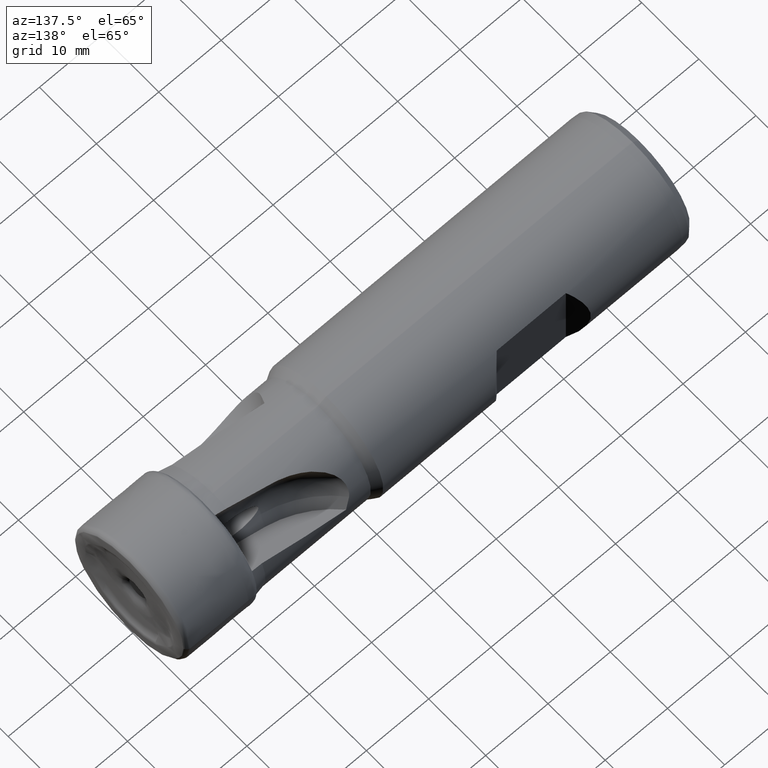
[diagram: clean part render]
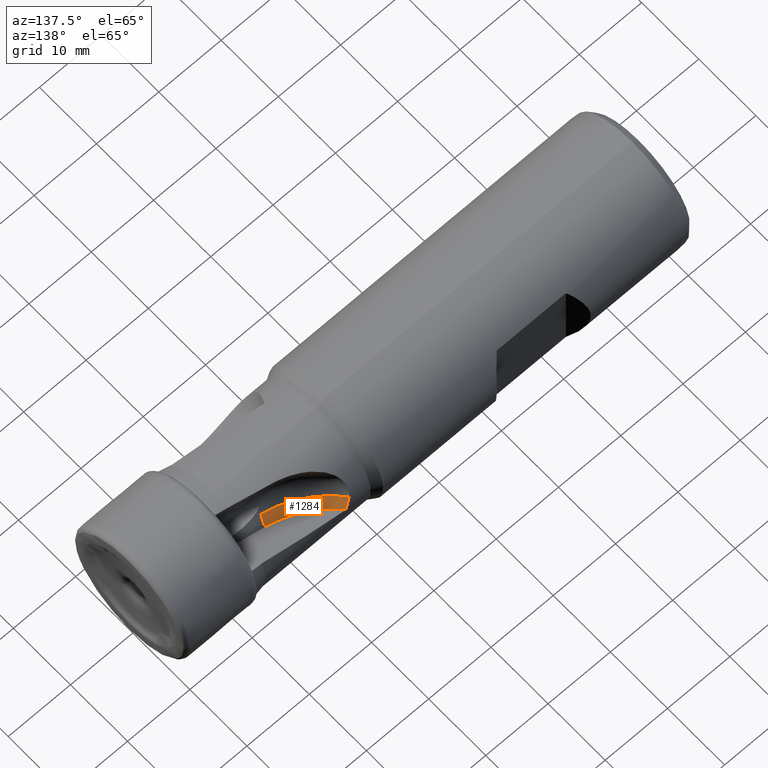
[diagram: same view with one face highlighted and labeled with its STEP entity id]
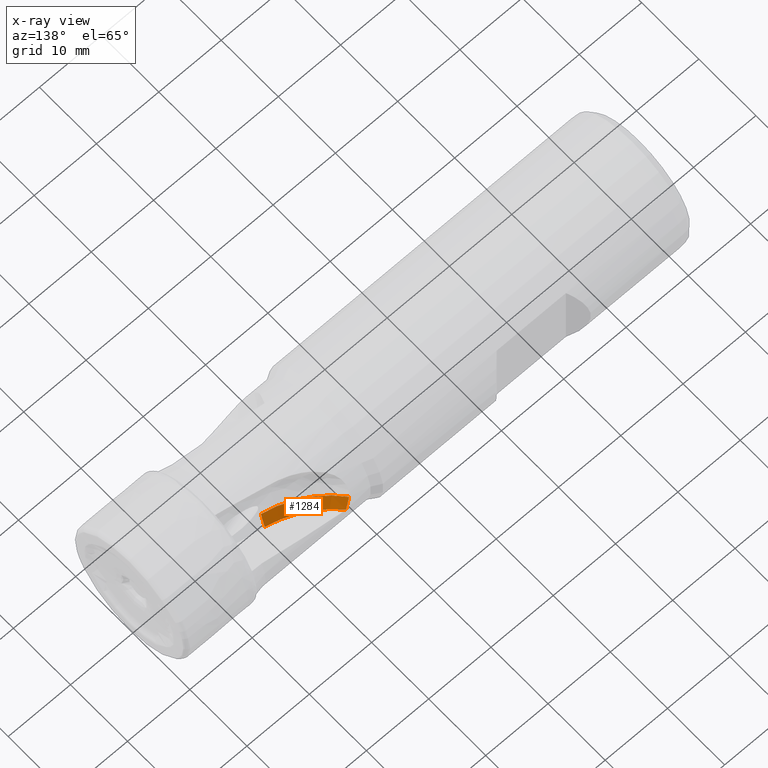
[diagram: x-ray of the same camera — body ghosted, the highlighted face saturated]
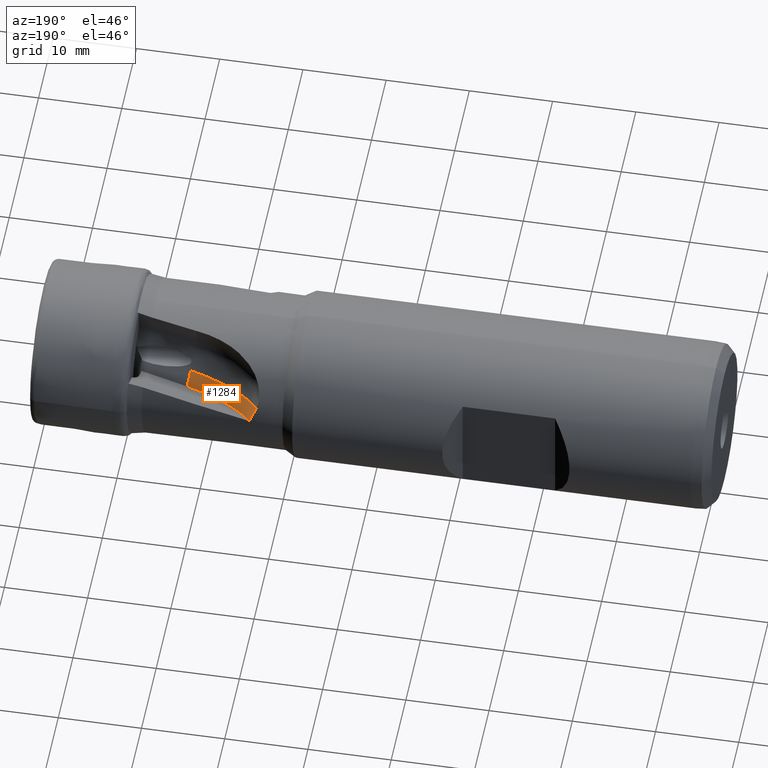
[diagram: same view with one face highlighted and labeled with its STEP entity id]
A machine part, auxiliary view. The second image highlights one B-rep face of the part: STEP entity #1284.
The next image is the same camera in x-ray: the body ghosted, the highlighted face saturated — about 0% of this face is hidden behind the body in this view.
A second angle (auxiliary view) of the same face is appended — the face is thin or edge-on in the first view.
In plain terms, the highlighted face is a freeform B-spline surface patch.
Its self-contained STEP definition (entity closure, byte-faithful):
#6 = CIRCLE ( 'NONE', #1662, 10.00001983290760100 ) ;
#166 = CARTESIAN_POINT ( 'NONE',  ( -26.57872664118340800, 8.973588948222179300, 2.480553098955772500 ) ) ;
#174 = CARTESIAN_POINT ( 'NONE',  ( -24.86125605647818700, 5.672919713768785700, 1.068354693434464100 ) ) ;
#183 = CARTESIAN_POINT ( 'NONE',  ( -21.54096527471467900, 3.513741537683877000, 0.6784243540060720400 ) ) ;
#208 = CARTESIAN_POINT ( 'NONE',  ( -17.40490549536792700, 4.128766780620034100, -0.3043842352024829800 ) ) ;
#220 = CARTESIAN_POINT ( 'NONE',  ( -26.23733899203747200, 10.06375628979936500, 0.8389107382787715000 ) ) ;
#225 = CARTESIAN_POINT ( 'NONE',  ( -21.29722658790441200, 4.536799965570571300, -1.024148459313530200 ) ) ;
#231 = CARTESIAN_POINT ( 'NONE',  ( -17.64864418217819900, 3.166374934911660800, 1.431816613739265800 ) ) ;
#243 = CARTESIAN_POINT ( 'NONE',  ( -24.58121054372533700, 6.743486303312002900, -0.5990603620072878500 ) ) ;
#256 = VERTEX_POINT ( 'NONE', #2162 ) ;
#273 = VERTEX_POINT ( 'NONE', #2146 ) ;
#277 = EDGE_CURVE ( 'NONE', #273, #256, #6, .T. ) ;
#310 = VERTEX_POINT ( 'NONE', #2191 ) ;
#406 = VERTEX_POINT ( 'NONE', #1946 ) ;
#1186 = FACE_OUTER_BOUND ( 'NONE', #4034, .T. ) ;
#1284 = ADVANCED_FACE ( 'NONE', ( #1186 ), #3343, .T. ) ;
#1606 = CARTESIAN_POINT ( 'NONE',  ( -26.54945737962980700, 8.917788416002267100, 2.456735591681937800 ) ) ;
#1609 = CARTESIAN_POINT ( 'NONE',  ( -26.32688608731626400, 9.097817253906917800, 1.803242765403043200 ) ) ;
#1611 = CARTESIAN_POINT ( 'NONE',  ( -26.07041568643023800, 9.202240444450760400, 1.140874201251209000 ) ) ;
#1612 = CARTESIAN_POINT ( 'NONE',  ( -25.77262820655407800, 9.236827555946195600, 0.4934741145317769200 ) ) ;
#1662 = AXIS2_PLACEMENT_3D ( 'NONE', #2141, #2140, #2139 ) ;
#1780 = AXIS2_PLACEMENT_3D ( 'NONE', #3542, #3543, #3544 ) ;
#1946 = CARTESIAN_POINT ( 'NONE',  ( -26.54945737962980700, 8.917788416002267100, 2.456735591681937800 ) ) ;
#2139 = DIRECTION ( 'NONE',  ( 0.0000000000000000000, 0.8746197071394000700, 0.4848096202463290600 ) ) ;
#2140 = DIRECTION ( 'NONE',  ( 0.2079116908177434400, 0.4742153668566159700, -0.8555071680929110500 ) ) ;
#2141 = CARTESIAN_POINT ( 'NONE',  ( -17.38542442561514200, 12.87295633817999500, 4.547333618086794300 ) ) ;
#2146 = CARTESIAN_POINT ( 'NONE',  ( -17.40490549536792700, 4.128766780620034100, -0.3043842352024833700 ) ) ;
#2162 = CARTESIAN_POINT ( 'NONE',  ( -25.77262820655407800, 9.236827555946195600, 0.4934741145317769200 ) ) ;
#2191 = CARTESIAN_POINT ( 'NONE',  ( -17.64864418217819900, 3.166374934911661200, 1.431816613739262700 ) ) ;
#3111 = EDGE_CURVE ( 'NONE', #310, #406, #3146, .T. ) ;
#3129 = EDGE_CURVE ( 'NONE', #310, #273, #3160, .T. ) ;
#3146 = CIRCLE ( 'NONE', #1780, 10.00119182282161600 ) ;
#3160 = LINE ( 'NONE', #3639, #3161 ) ;
#3161 = VECTOR ( 'NONE', #3640, 1000.000000000000100 ) ;
#3175 = ORIENTED_EDGE ( 'NONE', *, *, #3111, .F. ) ;
#3212 = ORIENTED_EDGE ( 'NONE', *, *, #277, .T. ) ;
#3215 = ORIENTED_EDGE ( 'NONE', *, *, #3129, .T. ) ;
#3270 = ORIENTED_EDGE ( 'NONE', *, *, #5040, .F. ) ;
#3343 =( BOUNDED_SURFACE ( )  B_SPLINE_SURFACE ( 1, 3, ( 
 ( #231, #183, #174, #166 ),
 ( #208, #225, #243, #220 ) ),
 .UNSPECIFIED., .F., .F., .T. ) 
 B_SPLINE_SURFACE_WITH_KNOTS ( ( 2, 2 ),
 ( 4, 4 ),
 ( 0.0000000000000000000, 1.000000000000000000 ),
 ( 0.0000000000000000000, 1.000000000000000000 ),
 .UNSPECIFIED. ) 
 GEOMETRIC_REPRESENTATION_ITEM ( )  RATIONAL_B_SPLINE_SURFACE ( (
 ( 1.000000000000000000, 0.8965161031530889400, 0.8965161031530889400, 1.000000000000000000),
 ( 1.000000000000000000, 0.8965161031530889400, 0.8965161031530889400, 1.000000000000000000) ) ) 
 REPRESENTATION_ITEM ( '' )  SURFACE ( )  );
#3365 = B_SPLINE_CURVE_WITH_KNOTS ( 'NONE', 3,
 ( #1606, #1609, #1611, #1612 ),
 .UNSPECIFIED., .F., .F.,
 ( 4, 4 ),
 ( 4.983385708973216800E-016, 0.002140108579208741200 ),
 .UNSPECIFIED. ) ;
#3542 = CARTESIAN_POINT ( 'NONE',  ( -17.79966547374299100, 11.92813466974760800, 6.251837028154078300 ) ) ;
#3543 = DIRECTION ( 'NONE',  ( 0.2079116908177434400, 0.4742153668566159700, -0.8555071680929110500 ) ) ;
#3544 = DIRECTION ( 'NONE',  ( 0.0000000000000000000, 0.8746197071394001800, 0.4848096202463292900 ) ) ;
#3639 = CARTESIAN_POINT ( 'NONE',  ( -17.40490549536792700, 4.128766780620034100, -0.3043842352024833700 ) ) ;
#3640 = DIRECTION ( 'NONE',  ( 0.1218693434051340000, 0.4811959228541856600, -0.8681004244708731000 ) ) ;
#4034 = EDGE_LOOP ( 'NONE', ( #3175, #3215, #3212, #3270 ) ) ;
#5040 = EDGE_CURVE ( 'NONE', #406, #256, #3365, .T. ) ;